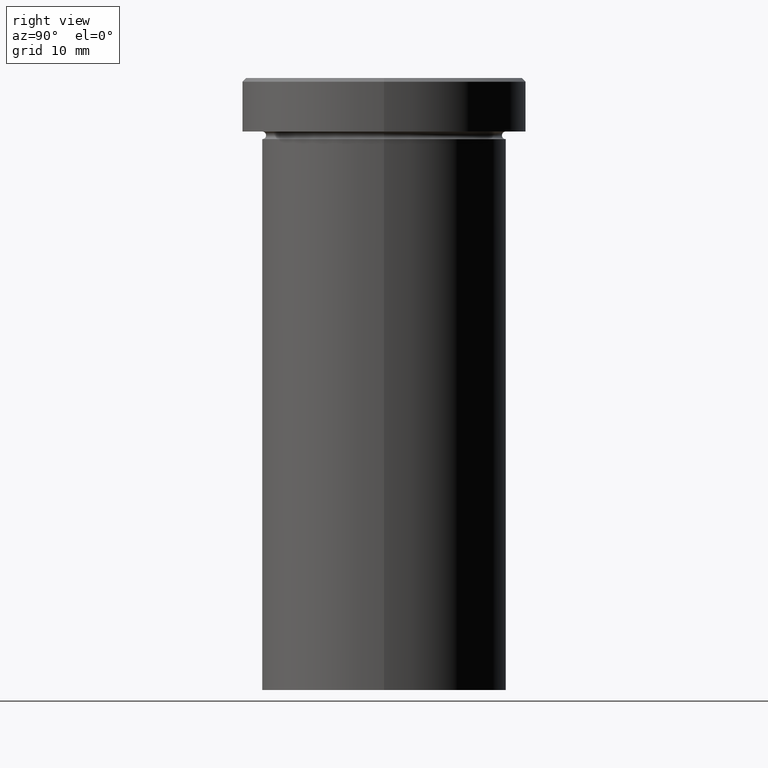
[diagram: clean part render]
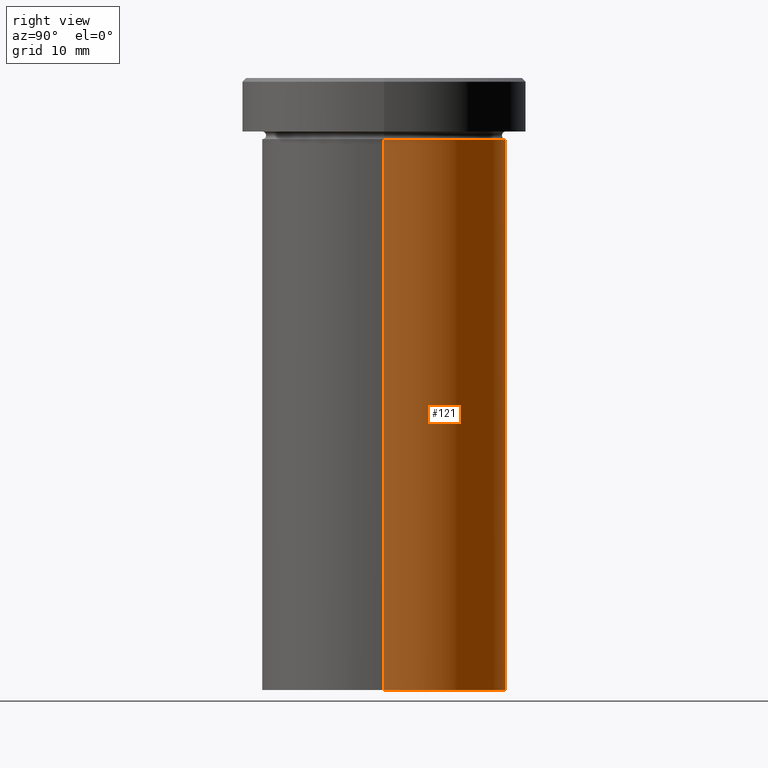
[diagram: same view with one face highlighted and labeled with its STEP entity id]
A machine part, right view. The second image highlights one B-rep face of the part: STEP entity #121.
In plain terms, the highlighted cylindrical surface (partial cylindrical patch) has radius 16 mm, axis along (-0, -0, 1).
Its self-contained STEP definition (entity closure, byte-faithful):
#5 = DIRECTION ( 'NONE',  ( -0.000000000000000000, -0.000000000000000000, 1.000000000000000000 ) ) ;
#22 = CIRCLE ( 'NONE', #54, 16.00000000000000000 ) ;
#31 = ORIENTED_EDGE ( 'NONE', *, *, #210, .F. ) ;
#37 = VECTOR ( 'NONE', #5, 1000.000000000000000 ) ;
#43 = CARTESIAN_POINT ( 'NONE',  ( 16.00000000000000000, 0.000000000000000000, -8.000000000000000000 ) ) ;
#46 = DIRECTION ( 'NONE',  ( -0.000000000000000000, -0.000000000000000000, 1.000000000000000000 ) ) ;
#51 = CARTESIAN_POINT ( 'NONE',  ( 16.00000000000000000, 0.000000000000000000, -80.00000000000000000 ) ) ;
#54 = AXIS2_PLACEMENT_3D ( 'NONE', #189, #67, #91 ) ;
#57 = VERTEX_POINT ( 'NONE', #301 ) ;
#67 = DIRECTION ( 'NONE',  ( -0.000000000000000000, -0.000000000000000000, 1.000000000000000000 ) ) ;
#72 = DIRECTION ( 'NONE',  ( -0.000000000000000000, -0.000000000000000000, 1.000000000000000000 ) ) ;
#74 = VERTEX_POINT ( 'NONE', #90 ) ;
#75 = LINE ( 'NONE', #311, #151 ) ;
#82 = ORIENTED_EDGE ( 'NONE', *, *, #201, .T. ) ;
#90 = CARTESIAN_POINT ( 'NONE',  ( -16.00000000000000000, 1.959434878635765131E-15, -80.00000000000000000 ) ) ;
#91 = DIRECTION ( 'NONE',  ( 1.000000000000000000, 0.000000000000000000, 0.000000000000000000 ) ) ;
#99 = DIRECTION ( 'NONE',  ( 1.000000000000000000, 0.000000000000000000, 0.000000000000000000 ) ) ;
#114 = DIRECTION ( 'NONE',  ( 1.000000000000000000, 0.000000000000000000, 0.000000000000000000 ) ) ;
#121 = ADVANCED_FACE ( 'NONE', ( #193 ), #261, .T. ) ;
#151 = VECTOR ( 'NONE', #72, 1000.000000000000000 ) ;
#165 = ORIENTED_EDGE ( 'NONE', *, *, #276, .T. ) ;
#171 = CARTESIAN_POINT ( 'NONE',  ( 0.000000000000000000, 0.000000000000000000, -8.000000000000000000 ) ) ;
#174 = AXIS2_PLACEMENT_3D ( 'NONE', #171, #397, #99 ) ;
#189 = CARTESIAN_POINT ( 'NONE',  ( 0.000000000000000000, 0.000000000000000000, -80.00000000000000000 ) ) ;
#192 = AXIS2_PLACEMENT_3D ( 'NONE', #331, #46, #114 ) ;
#193 = FACE_OUTER_BOUND ( 'NONE', #385, .T. ) ;
#201 = EDGE_CURVE ( 'NONE', #275, #74, #22, .T. ) ;
#210 = EDGE_CURVE ( 'NONE', #275, #229, #321, .T. ) ;
#229 = VERTEX_POINT ( 'NONE', #43 ) ;
#261 = CYLINDRICAL_SURFACE ( 'NONE', #192, 16.00000000000000000 ) ;
#275 = VERTEX_POINT ( 'NONE', #51 ) ;
#276 = EDGE_CURVE ( 'NONE', #74, #57, #75, .T. ) ;
#282 = EDGE_CURVE ( 'NONE', #229, #57, #309, .T. ) ;
#294 = CARTESIAN_POINT ( 'NONE',  ( 16.00000000000000000, 0.000000000000000000, 0.000000000000000000 ) ) ;
#301 = CARTESIAN_POINT ( 'NONE',  ( -16.00000000000000000, 1.959434878635765131E-15, -8.000000000000000000 ) ) ;
#309 = CIRCLE ( 'NONE', #174, 16.00000000000000000 ) ;
#311 = CARTESIAN_POINT ( 'NONE',  ( -16.00000000000000000, 1.959434878635765131E-15, 0.000000000000000000 ) ) ;
#321 = LINE ( 'NONE', #294, #37 ) ;
#322 = ORIENTED_EDGE ( 'NONE', *, *, #282, .F. ) ;
#331 = CARTESIAN_POINT ( 'NONE',  ( 0.000000000000000000, 0.000000000000000000, 0.000000000000000000 ) ) ;
#385 = EDGE_LOOP ( 'NONE', ( #82, #165, #322, #31 ) ) ;
#397 = DIRECTION ( 'NONE',  ( -0.000000000000000000, -0.000000000000000000, 1.000000000000000000 ) ) ;